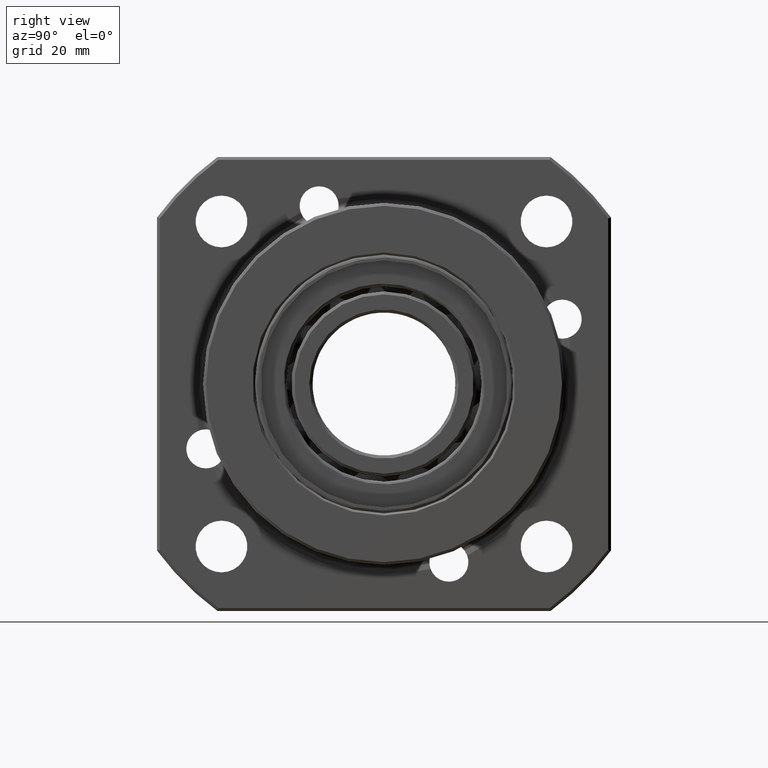
[diagram: clean part render]
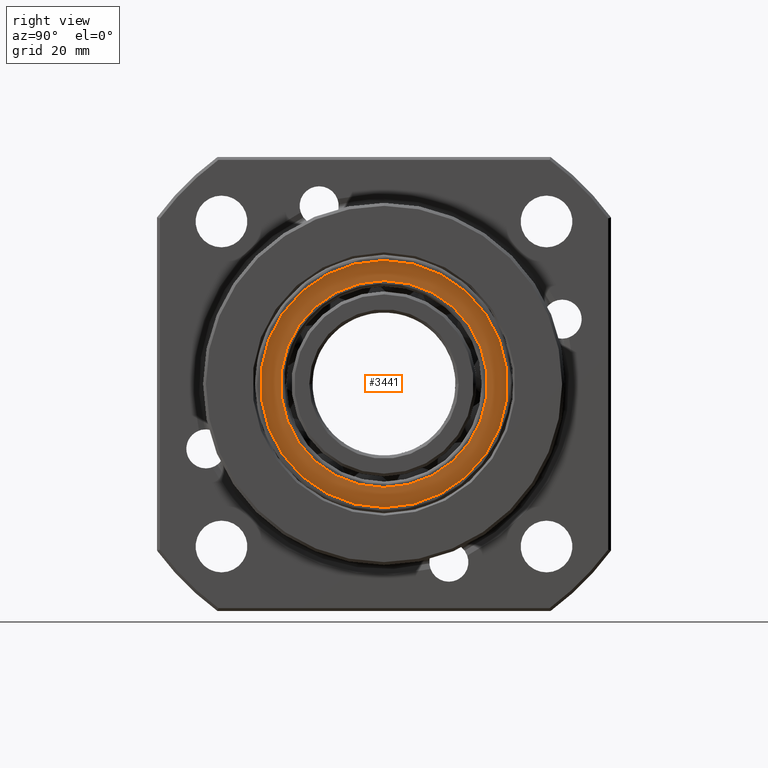
[diagram: same view with one face highlighted and labeled with its STEP entity id]
A machine part, right view. The second image highlights one B-rep face of the part: STEP entity #3441.
In plain terms, the highlighted planar face has unit normal (-1, 0, -0).
Its self-contained STEP definition (entity closure, byte-faithful):
#2 = DIRECTION ( 'NONE',  ( 0.0000000000000000000, 0.0000000000000000000, -1.000000000000000000 ) ) ;
#28 = FACE_BOUND ( 'NONE', #7806, .T. ) ;
#915 = AXIS2_PLACEMENT_3D ( 'NONE', #11745, #6020, #2 ) ;
#967 = FACE_OUTER_BOUND ( 'NONE', #9358, .T. ) ;
#1079 = DIRECTION ( 'NONE',  ( 0.0000000000000000000, 0.0000000000000000000, -1.000000000000000000 ) ) ;
#1084 = DIRECTION ( 'NONE',  ( 1.000000000000000000, 1.725633230170963500E-031, 2.031196429125632100E-031 ) ) ;
#1085 = CARTESIAN_POINT ( 'NONE',  ( 38.69999999999996000, 3.389636702121535100E-029, -4.622231866529366000E-030 ) ) ;
#1112 = ORIENTED_EDGE ( 'NONE', *, *, #10171, .F. ) ;
#1750 = CIRCLE ( 'NONE', #6198, 18.00000000000003900 ) ;
#1869 = ORIENTED_EDGE ( 'NONE', *, *, #2792, .F. ) ;
#2792 = EDGE_CURVE ( 'NONE', #10303, #8330, #1750, .T. ) ;
#3441 = ADVANCED_FACE ( 'NONE', ( #967, #28 ), #10376, .F. ) ;
#4716 = CIRCLE ( 'NONE', #915, 21.50000000000004600 ) ;
#4842 = CARTESIAN_POINT ( 'NONE',  ( 38.69999999999996000, 3.389636702121535100E-029, -18.00000000000003900 ) ) ;
#5450 = EDGE_CURVE ( 'NONE', #7278, #6420, #9682, .T. ) ;
#5580 = CARTESIAN_POINT ( 'NONE',  ( 38.69999999999996000, 3.389636702121535100E-029, -4.622231866529366000E-030 ) ) ;
#5812 = CARTESIAN_POINT ( 'NONE',  ( 38.69999999999996000, 2.204364238465274900E-015, 18.00000000000003900 ) ) ;
#6020 = DIRECTION ( 'NONE',  ( 1.000000000000000000, 1.725633230170963500E-031, 2.031196429125632100E-031 ) ) ;
#6198 = AXIS2_PLACEMENT_3D ( 'NONE', #1085, #1084, #1079 ) ;
#6420 = VERTEX_POINT ( 'NONE', #11274 ) ;
#6595 = DIRECTION ( 'NONE',  ( 0.0000000000000000000, 0.0000000000000000000, -1.000000000000000000 ) ) ;
#6950 = AXIS2_PLACEMENT_3D ( 'NONE', #5580, #12306, #6595 ) ;
#7167 = CARTESIAN_POINT ( 'NONE',  ( 38.69999999999996000, 2.632990618166849500E-015, 21.50000000000004600 ) ) ;
#7278 = VERTEX_POINT ( 'NONE', #7167 ) ;
#7315 = AXIS2_PLACEMENT_3D ( 'NONE', #8459, #8418, #8391 ) ;
#7806 = EDGE_LOOP ( 'NONE', ( #1869, #1112 ) ) ;
#8068 = AXIS2_PLACEMENT_3D ( 'NONE', #10356, #10301, #10290 ) ;
#8330 = VERTEX_POINT ( 'NONE', #5812 ) ;
#8391 = DIRECTION ( 'NONE',  ( 0.0000000000000000000, 0.0000000000000000000, -1.000000000000000000 ) ) ;
#8418 = DIRECTION ( 'NONE',  ( 1.000000000000000000, 1.725633230170963500E-031, 2.031196429125632100E-031 ) ) ;
#8459 = CARTESIAN_POINT ( 'NONE',  ( 38.69999999999996000, 3.389636702121535100E-029, -4.622231866529366000E-030 ) ) ;
#9358 = EDGE_LOOP ( 'NONE', ( #10323, #9752 ) ) ;
#9455 = CIRCLE ( 'NONE', #6950, 18.00000000000003900 ) ;
#9682 = CIRCLE ( 'NONE', #7315, 21.50000000000004600 ) ;
#9752 = ORIENTED_EDGE ( 'NONE', *, *, #5450, .T. ) ;
#10171 = EDGE_CURVE ( 'NONE', #8330, #10303, #9455, .T. ) ;
#10290 = DIRECTION ( 'NONE',  ( -2.031196429125632500E-031, 0.0000000000000000000, 1.000000000000000000 ) ) ;
#10301 = DIRECTION ( 'NONE',  ( -1.000000000000000000, 1.725633230170958300E-031, -2.031196429125632500E-031 ) ) ;
#10303 = VERTEX_POINT ( 'NONE', #4842 ) ;
#10323 = ORIENTED_EDGE ( 'NONE', *, *, #12118, .T. ) ;
#10356 = CARTESIAN_POINT ( 'NONE',  ( 38.69999999999996000, 21.50000000000006000, -3.066862354492491700E-015 ) ) ;
#10376 = PLANE ( 'NONE',  #8068 ) ;
#11274 = CARTESIAN_POINT ( 'NONE',  ( 38.69999999999996000, 3.389636702121535100E-029, -21.50000000000004600 ) ) ;
#11745 = CARTESIAN_POINT ( 'NONE',  ( 38.69999999999996000, 3.389636702121535100E-029, -4.622231866529366000E-030 ) ) ;
#12118 = EDGE_CURVE ( 'NONE', #6420, #7278, #4716, .T. ) ;
#12306 = DIRECTION ( 'NONE',  ( 1.000000000000000000, 1.725633230170963500E-031, 2.031196429125632100E-031 ) ) ;